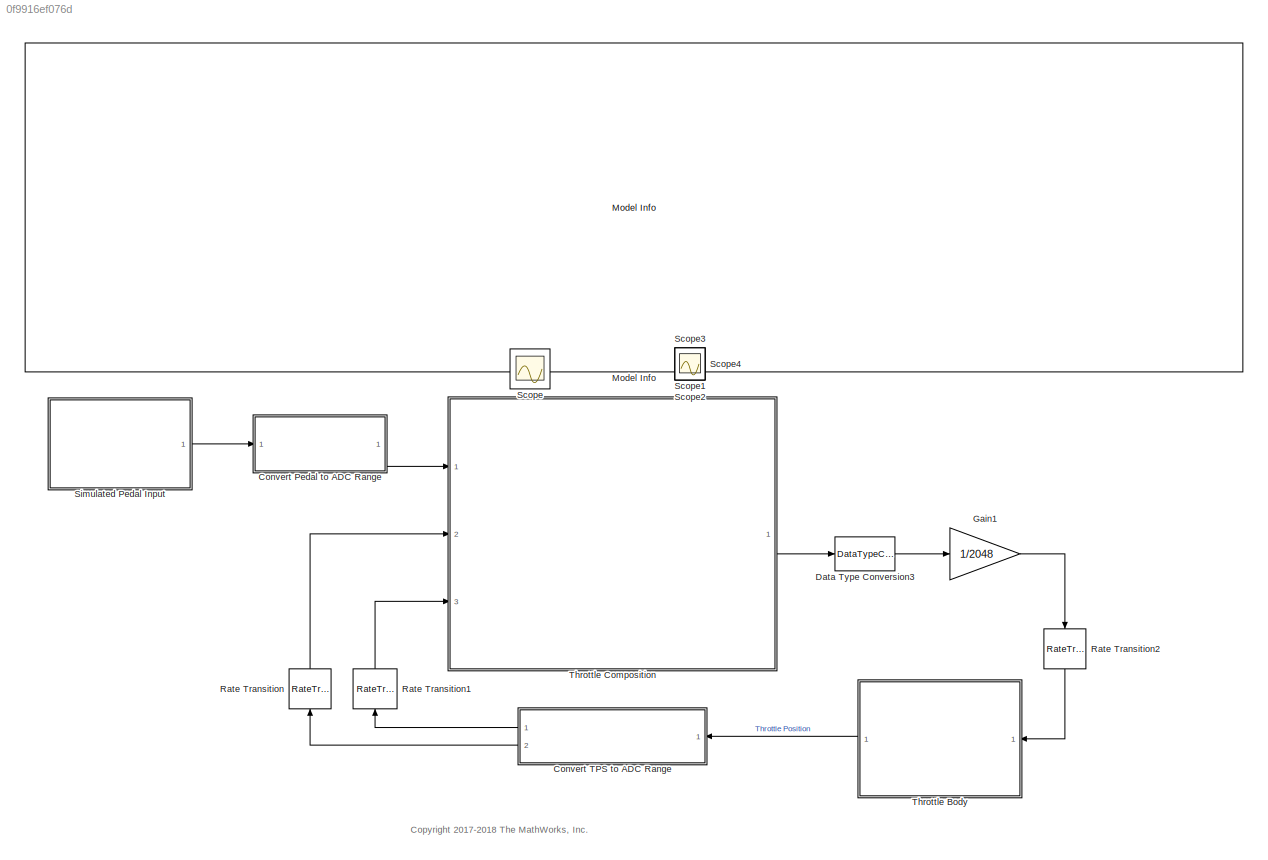
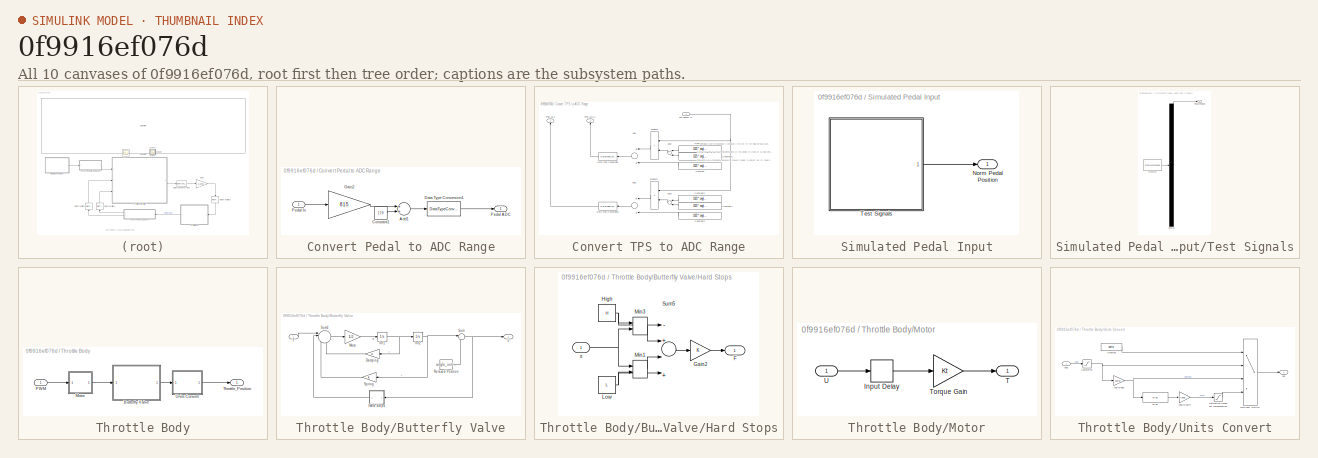
[diagram: thumbnail index - all 10 canvases of the model, root first then tree order]
MODEL slx_0f9916ef076d
KIND model
CONFIG AbsTol = auto
CONFIG EnableMultiTasking = on
CONFIG FixedStep = 0.005
CONFIG InitFcn = mbd_s32k_as_consistency_checks(bdroot(gcs));
CONFIG MaxStep = auto
CONFIG MinStep = auto
CONFIG RelTol = 1e-3
CONFIG SampleTimeConstraint = Unconstrained
CONFIG Solver = ode4
CONFIG SolverName = ode4
CONFIG StartTime = 0
CONFIG StopTime = 1.5
WORKSPACE source: MAT-file member
WORKSPACE MCOS: class17 (value not decoded)
BLOCK [SubSystem] Convert Pedal to ADC Range
  Ports = [1, 1]
  RequestExecContextInheritance = off
BLOCK [Sum] Convert Pedal to ADC Range/Add1
  InputSameDT = off
  OutDataTypeStr = Inherit: Inherit via internal rule
  Ports = [2, 1]
  SaturateOnIntegerOverflow = off
BLOCK [Constant] Convert Pedal to ADC Range/Constant1
  Value = 170
BLOCK [DataTypeConversion] Convert Pedal to ADC Range/Data Type Conversion1
  OutDataTypeStr = uint16
  RndMeth = Floor
  SaturateOnIntegerOverflow = off
BLOCK [Gain] Convert Pedal to ADC Range/Gain2
  Gain = 815
  OutDataTypeStr = Inherit: Inherit via internal rule
  ParamDataTypeStr = Inherit: Inherit via internal rule
  SaturateOnIntegerOverflow = off
BLOCK [Outport] Convert Pedal to ADC Range/Pedal ADC
  IconDisplay = Port number
BLOCK [Inport] Convert Pedal to ADC Range/Pedal In
  IconDisplay = Port number
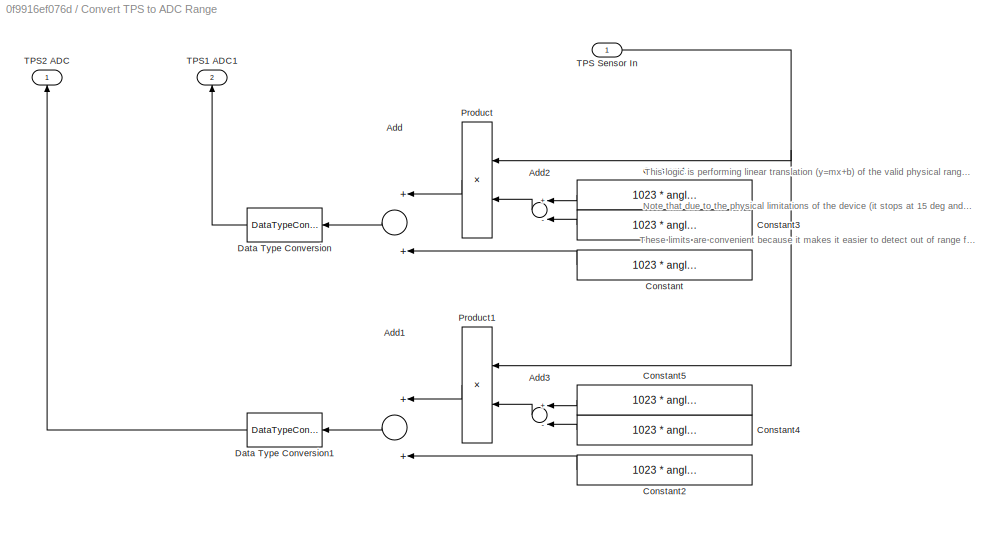
BLOCK [SubSystem] Convert TPS to ADC Range
  Ports = [1, 2]
  RequestExecContextInheritance = off
BLOCK [Sum] Convert TPS to ADC Range/Add
  InputSameDT = off
  OutDataTypeStr = Inherit: Inherit via internal rule
  Ports = [2, 1]
  SaturateOnIntegerOverflow = off
BLOCK [Sum] Convert TPS to ADC Range/Add1
  InputSameDT = off
  OutDataTypeStr = Inherit: Inherit via internal rule
  Ports = [2, 1]
  SaturateOnIntegerOverflow = off
BLOCK [Sum] Convert TPS to ADC Range/Add2
  InputSameDT = off
  Inputs = +-
  OutDataTypeStr = Inherit: Inherit via internal rule
  Ports = [2, 1]
  SaturateOnIntegerOverflow = off
BLOCK [Sum] Convert TPS to ADC Range/Add3
  InputSameDT = off
  Inputs = +-
  OutDataTypeStr = Inherit: Inherit via internal rule
  Ports = [2, 1]
  SaturateOnIntegerOverflow = off
BLOCK [Constant] Convert TPS to ADC Range/Constant
  Value = 1023 * angle_init/90
BLOCK [Constant] Convert TPS to ADC Range/Constant1
  Value = 1023 * angle_open/90
BLOCK [Constant] Convert TPS to ADC Range/Constant2
  Value = 1023 * angle_open/90
BLOCK [Constant] Convert TPS to ADC Range/Constant3
  Value = 1023 * angle_init/90
BLOCK [Constant] Convert TPS to ADC Range/Constant4
  Value = 1023 * angle_open/90
BLOCK [Constant] Convert TPS to ADC Range/Constant5
  Value = 1023 * angle_init/90
BLOCK [DataTypeConversion] Convert TPS to ADC Range/Data Type Conversion
  OutDataTypeStr = uint16
  RndMeth = Floor
  SaturateOnIntegerOverflow = off
BLOCK [DataTypeConversion] Convert TPS to ADC Range/Data Type Conversion1
  OutDataTypeStr = uint16
  RndMeth = Floor
  SaturateOnIntegerOverflow = off
BLOCK [Product] Convert TPS to ADC Range/Product
  InputSameDT = off
  OutDataTypeStr = Inherit: Inherit via internal rule
  Ports = [2, 1]
  RndMeth = Floor
  SaturateOnIntegerOverflow = off
BLOCK [Product] Convert TPS to ADC Range/Product1
  InputSameDT = off
  OutDataTypeStr = Inherit: Inherit via internal rule
  Ports = [2, 1]
  RndMeth = Floor
  SaturateOnIntegerOverflow = off
BLOCK [Inport] Convert TPS to ADC Range/TPS Sensor In
  IconDisplay = Port number
BLOCK [Outport] Convert TPS to ADC Range/TPS1 ADC1
  IconDisplay = Port number
  Port = 2
BLOCK [Outport] Convert TPS to ADC Range/TPS2 ADC
  IconDisplay = Port number
BLOCK [DataTypeConversion] Data Type Conversion3
  OutDataTypeStr = double
  RndMeth = Floor
  SaturateOnIntegerOverflow = off
BLOCK [Gain] Gain1
  Gain = 1/2048
  OutDataTypeStr = Inherit: Inherit via internal rule
  ParamDataTypeStr = Inherit: Inherit via internal rule
  SaturateOnIntegerOverflow = off
BLOCK [Reference] Model Info  REF=simulink/Model-Wide
Utilities/Model Info
  Ports = []
  SourceBlock = simulink/Model-Wide\nUtilities/Model Info
  SourceProductBaseCode = SL
  SourceProductName = Simulink
  SourceType = CMBlock
BLOCK [RateTransition] Rate Transition
  Deterministic = off
  OutPortSampleTime = .005
BLOCK [RateTransition] Rate Transition1
  Deterministic = off
  OutPortSampleTime = .005
BLOCK [RateTransition] Rate Transition2
  Deterministic = off
BLOCK [Scope] Scope
  Floating = off
  IOType = viewer
  NumInputPorts = 1
  Ports = []
  ScopeSpecificationString = Simulink.scopes.TimeScopeBlockCfg('CurrentConfiguration', extmgr.ConfigurationSet(extmgr.Configuration('Core','General UI',true),extmgr.Configuration('Core','Source UI',true),extmgr.Configuration('Sources','WiredSimulink',true,'DataLoggingSaveFormat','Array','DataLoggingMaxPoints','7500','DataLoggingLimitDataPoints',true,'DataLoggingDecimation','1','DataLoggingDecimateData',true),extmgr.Configurat...<+1781ch>
BLOCK [Scope] Scope1
  Floating = off
  IOType = viewer
  NumInputPorts = 1
  Ports = []
  ScopeSpecificationString = Simulink.scopes.TimeScopeBlockCfg('CurrentConfiguration', extmgr.ConfigurationSet(extmgr.Configuration('Core','General UI',true),extmgr.Configuration('Core','Source UI',true),extmgr.Configuration('Sources','WiredSimulink',true,'DataLoggingVariableName','ScopeData1'),extmgr.Configuration('Visuals','Time Domain',true,'SerializedDisplays',{struct('MinYLimReal','-1.00000','MaxYLimReal','1.00000','YLab...<+1359ch>
BLOCK [Scope] Scope2
  Floating = off
  IOType = viewer
  NumInputPorts = 1
  Ports = []
  ScopeSpecificationString = Simulink.scopes.TimeScopeBlockCfg('CurrentConfiguration', extmgr.ConfigurationSet(extmgr.Configuration('Core','General UI',true),extmgr.Configuration('Core','Source UI',true),extmgr.Configuration('Sources','WiredSimulink',true,'DataLoggingVariableName','ScopeData2'),extmgr.Configuration('Visuals','Time Domain',true,'SerializedDisplays',{struct('MinYLimReal','-1.25','MaxYLimReal','1.25','YLabelReal...<+1341ch>
BLOCK [Scope] Scope3
  Floating = off
  IOType = viewer
  NumInputPorts = 1
  Ports = []
  ScopeSpecificationString = Simulink.scopes.TimeScopeBlockCfg('CurrentConfiguration', extmgr.ConfigurationSet(extmgr.Configuration('Core','General UI',true),extmgr.Configuration('Core','Source UI',true),extmgr.Configuration('Sources','WiredSimulink',true,'DataLoggingVariableName','ScopeData1'),extmgr.Configuration('Visuals','Time Domain',true,'SerializedDisplays',{struct('MinYLimReal','-120.75','MaxYLimReal','1086.75','YLabe...<+1359ch>
BLOCK [Scope] Scope4
  Floating = off
  IOType = viewer
  NumInputPorts = 1
  Ports = []
  ScopeSpecificationString = Simulink.scopes.TimeScopeBlockCfg('CurrentConfiguration', extmgr.ConfigurationSet(extmgr.Configuration('Core','General UI',true),extmgr.Configuration('Core','Source UI',true),extmgr.Configuration('Sources','WiredSimulink',true,'DataLoggingVariableName','ScopeData2'),extmgr.Configuration('Visuals','Time Domain',true,'SerializedDisplays',{struct('MinYLimReal','70.5','MaxYLimReal','1065.5','YLabelRea...<+1341ch>
BLOCK [SubSystem] Simulated Pedal Input
  Ports = [0, 1]
  RequestExecContextInheritance = off
BLOCK [Outport] Simulated Pedal Input/Norm Pedal Position
  IconDisplay = Port number
BLOCK [SubSystem] Simulated Pedal Input/Test Signals
  ClipboardFcn = sigbuilder_block('clipboard');
  CloseFcn = sigbuilder_block('close');
  ContinueFcn = sigbuilder_block('continue')
  CopyFcn = sigbuilder_block('copy');
  DeleteFcn = sigbuilder_block('delete');
  LoadFcn = sigbuilder_block('load');
  MaskHideContents = on
  ModelCloseFcn = sigbuilder_block('modelClose');
  NameChangeFcn = sigbuilder_block('namechange');
  OpenFcn = sigbuilder_block('open',[-1004.25 112.5 630 289.5 ]);
  PauseFcn = sigbuilder_block('pause')
  Ports = [0, 1]
  PreSaveFcn = sigbuilder_block('preSave');
  RequestExecContextInheritance = off
  StartFcn = sigbuilder_block('start');
  StopFcn = sigbuilder_block('stop');
  Tag = STV Subsys
BLOCK [Demux] Simulated Pedal Input/Test Signals/Demux
  Outputs = 1
  Ports = [1, 1]
  Tag = STV Demux
BLOCK [FromWorkspace] Simulated Pedal Input/Test Signals/FromWs
  SampleTime = 0
  Tag = STV FromWs
  VariableName = tuvar
BLOCK [Outport] Simulated Pedal Input/Test Signals/Pedal Position
  IconDisplay = Port number
  Tag = STV Outport
BLOCK [SubSystem] Throttle Body
  Ports = [1, 1]
  RequestExecContextInheritance = off
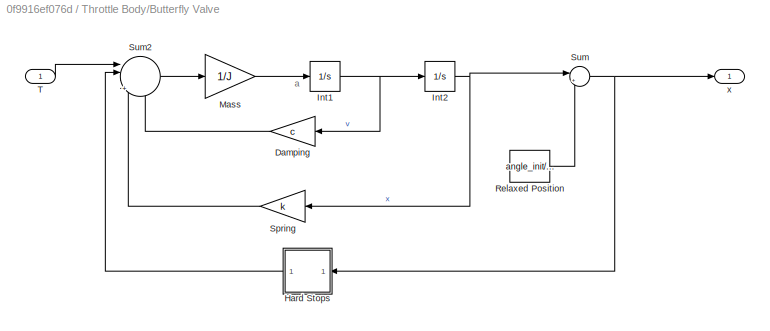
BLOCK [SubSystem] Throttle Body/Butterfly Valve
  Ports = [1, 1]
  RequestExecContextInheritance = off
BLOCK [Gain] Throttle Body/Butterfly Valve/Damping
  Gain = c
BLOCK [SubSystem] Throttle Body/Butterfly Valve/Hard Stops
  Ports = [1, 1]
  RequestExecContextInheritance = off
BLOCK [Outport] Throttle Body/Butterfly Valve/Hard Stops/F
  IconDisplay = Port number
BLOCK [Gain] Throttle Body/Butterfly Valve/Hard Stops/Gain2
  Gain = K
BLOCK [Constant] Throttle Body/Butterfly Valve/Hard Stops/High
  Value = H
BLOCK [Constant] Throttle Body/Butterfly Valve/Hard Stops/Low
  Value = L
BLOCK [MinMax] Throttle Body/Butterfly Valve/Hard Stops/Min1
  Inputs = 2
  Ports = [2, 1]
BLOCK [MinMax] Throttle Body/Butterfly Valve/Hard Stops/Min3
  Function = max
  Inputs = 2
  Ports = [2, 1]
BLOCK [Sum] Throttle Body/Butterfly Valve/Hard Stops/Sum5
  Inputs = -+||+-
  Ports = [4, 1]
BLOCK [Inport] Throttle Body/Butterfly Valve/Hard Stops/x
  IconDisplay = Port number
BLOCK [Integrator] Throttle Body/Butterfly Valve/Int1
  Ports = [1, 1]
BLOCK [Integrator] Throttle Body/Butterfly Valve/Int2
  Ports = [1, 1]
BLOCK [Gain] Throttle Body/Butterfly Valve/Mass
  Gain = 1/J
BLOCK [Constant] Throttle Body/Butterfly Valve/Relaxed Position
  Value = angle_init/180*pi
BLOCK [Gain] Throttle Body/Butterfly Valve/Spring
  Gain = k
BLOCK [Sum] Throttle Body/Butterfly Valve/Sum
  IconShape = round
  Inputs = |++
  Ports = [2, 1]
BLOCK [Sum] Throttle Body/Butterfly Valve/Sum2
  IconShape = round
  Inputs = |||+---
  Ports = [4, 1]
BLOCK [Inport] Throttle Body/Butterfly Valve/T
  IconDisplay = Port number
BLOCK [Outport] Throttle Body/Butterfly Valve/x
  IconDisplay = Port number
BLOCK [SubSystem] Throttle Body/Motor
  Ports = [1, 1]
  RequestExecContextInheritance = off
BLOCK [TransportDelay] Throttle Body/Motor/Input Delay
  DelayTime = input_delay
  Ports = [1, 1]
BLOCK [Outport] Throttle Body/Motor/T
  IconDisplay = Port number
BLOCK [Gain] Throttle Body/Motor/Torque Gain
  Gain = Kt
BLOCK [Inport] Throttle Body/Motor/U
  IconDisplay = Port number
BLOCK [Inport] Throttle Body/PWM
  IconDisplay = Port number
BLOCK [Outport] Throttle Body/Throttle_Position
  IconDisplay = Port number
BLOCK [SubSystem] Throttle Body/Units Convert
  Ports = [1, 1]
  RequestExecContextInheritance = off
BLOCK [Bias] Throttle Body/Units Convert/Bias
  Bias = -angle_init
  SaturateOnIntegerOverflow = off
BLOCK [Constant] Throttle Body/Units Convert/Constant
  Value = units
BLOCK [MultiPortSwitch] Throttle Body/Units Convert/Multiport Switch
  InputSameDT = off
  Ports = [4, 1]
  SaturateOnIntegerOverflow = off
BLOCK [Saturate] Throttle Body/Units Convert/Saturation
  InputPortMap = u0
  LowerLimit = 0.0
  Ports = [1, 1]
  UpperLimit = pi/2
BLOCK [Saturate] Throttle Body/Units Convert/Saturation (round off compensation)
  InputPortMap = u0
  LowerLimit = 0.0
  Ports = [1, 1]
  UpperLimit = 1.0
BLOCK [Gain] Throttle Body/Units Convert/deg-to-norm
  AttributesFormatString = %<Gain>
  Gain = 1/(angle_open-angle_init)
  OutDataTypeStr = Inherit: Inherit via internal rule
  ParamDataTypeStr = Inherit: Inherit via internal rule
  SaturateOnIntegerOverflow = off
BLOCK [Outport] Throttle Body/Units Convert/out
  IconDisplay = Port number
BLOCK [Gain] Throttle Body/Units Convert/rad-to-deg
  Gain = 180/pi
  OutDataTypeStr = Inherit: Inherit via internal rule
  ParamDataTypeStr = Inherit: Inherit via internal rule
  SaturateOnIntegerOverflow = off
BLOCK [Inport] Throttle Body/Units Convert/rads
  IconDisplay = Port number
BLOCK [ModelReference] Throttle Composition
  CachedPortDiscreteRates = [0.005]
  CodeInterface = Top model
  ModelNameDialog = mbdt_autosar_system.slx
  ModelReferenceVersion = 1.71
  Ports = [3, 1]
ANNOTATION (root): <copyright redacted>
ANNOTATION Convert TPS to ADC Range: This logic is performing linear translation (y=mx+b) of the valid physical range from the plant (0-1) to the expected range from the potentiometer (0-1023). Note that due to the physical limitations of the device (it stops at 15 deg and 85 deg), the limits cannot be reached. These limits are convenient because it makes it easier to detect out of range faults (like short to power/ground). TPS1 is a...<+137ch>
ANNOTATION Throttle Body/Butterfly Valve: a
LINE Convert Pedal to ADC Range/Add1:1 -> Convert Pedal to ADC Range/Data Type Conversion1:1
LINE Convert Pedal to ADC Range/Constant1:1 -> Convert Pedal to ADC Range/Add1:2
LINE Convert Pedal to ADC Range/Data Type Conversion1:1 -> Convert Pedal to ADC Range/Pedal ADC:1
LINE Convert Pedal to ADC Range/Gain2:1 -> Convert Pedal to ADC Range/Add1:1
LINE Convert Pedal to ADC Range/Pedal In:1 -> Convert Pedal to ADC Range/Gain2:1
LINE Convert Pedal to ADC Range:1 -> Throttle Composition:1
LINE Convert TPS to ADC Range/Add1:1 -> Convert TPS to ADC Range/Data Type Conversion1:1
LINE Convert TPS to ADC Range/Add2:1 -> Convert TPS to ADC Range/Product:2
LINE Convert TPS to ADC Range/Add3:1 -> Convert TPS to ADC Range/Product1:2
LINE Convert TPS to ADC Range/Add:1 -> Convert TPS to ADC Range/Data Type Conversion:1
LINE Convert TPS to ADC Range/Constant1:1 -> Convert TPS to ADC Range/Add2:1
LINE Convert TPS to ADC Range/Constant2:1 -> Convert TPS to ADC Range/Add1:2
LINE Convert TPS to ADC Range/Constant3:1 -> Convert TPS to ADC Range/Add2:2
LINE Convert TPS to ADC Range/Constant4:1 -> Convert TPS to ADC Range/Add3:2
LINE Convert TPS to ADC Range/Constant5:1 -> Convert TPS to ADC Range/Add3:1
LINE Convert TPS to ADC Range/Constant:1 -> Convert TPS to ADC Range/Add:2
LINE Convert TPS to ADC Range/Data Type Conversion1:1 -> Convert TPS to ADC Range/TPS2 ADC:1
LINE Convert TPS to ADC Range/Data Type Conversion:1 -> Convert TPS to ADC Range/TPS1 ADC1:1
LINE Convert TPS to ADC Range/Product1:1 -> Convert TPS to ADC Range/Add1:1
LINE Convert TPS to ADC Range/Product:1 -> Convert TPS to ADC Range/Add:1
NET Convert TPS to ADC Range/TPS Sensor In:1 -> Convert TPS to ADC Range/Product1:1, Convert TPS to ADC Range/Product:1
LINE Convert TPS to ADC Range:1 -> Rate Transition1:1
LINE Convert TPS to ADC Range:2 -> Rate Transition:1
LINE Data Type Conversion3:1 -> Gain1:1
LINE Gain1:1 -> Rate Transition2:1
LINE Rate Transition1:1 -> Throttle Composition:3
LINE Rate Transition2:1 -> Throttle Body:1
LINE Rate Transition:1 -> Throttle Composition:2
LINE Simulated Pedal Input/Test Signals/Demux:1 -> Simulated Pedal Input/Test Signals/Pedal Position:1
LINE Simulated Pedal Input/Test Signals/FromWs:1 -> Simulated Pedal Input/Test Signals/Demux:1
LINE Simulated Pedal Input/Test Signals:1 -> Simulated Pedal Input/Norm Pedal Position:1
LINE Simulated Pedal Input:1 -> Convert Pedal to ADC Range:1
LINE Throttle Body/Butterfly Valve/Damping:1 -> Throttle Body/Butterfly Valve/Sum2:4
LINE Throttle Body/Butterfly Valve/Hard Stops/Gain2:1 -> Throttle Body/Butterfly Valve/Hard Stops/F:1
NET Throttle Body/Butterfly Valve/Hard Stops/High:1 -> Throttle Body/Butterfly Valve/Hard Stops/Min3:1, Throttle Body/Butterfly Valve/Hard Stops/Sum5:1
NET Throttle Body/Butterfly Valve/Hard Stops/Low:1 -> Throttle Body/Butterfly Valve/Hard Stops/Min1:2, Throttle Body/Butterfly Valve/Hard Stops/Sum5:4
LINE Throttle Body/Butterfly Valve/Hard Stops/Min1:1 -> Throttle Body/Butterfly Valve/Hard Stops/Sum5:3
LINE Throttle Body/Butterfly Valve/Hard Stops/Min3:1 -> Throttle Body/Butterfly Valve/Hard Stops/Sum5:2
LINE Throttle Body/Butterfly Valve/Hard Stops/Sum5:1 -> Throttle Body/Butterfly Valve/Hard Stops/Gain2:1
NET Throttle Body/Butterfly Valve/Hard Stops/x:1 -> Throttle Body/Butterfly Valve/Hard Stops/Min1:1, Throttle Body/Butterfly Valve/Hard Stops/Min3:2
LINE Throttle Body/Butterfly Valve/Hard Stops:1 -> Throttle Body/Butterfly Valve/Sum2:2
NET Throttle Body/Butterfly Valve/Int1:1 -> Throttle Body/Butterfly Valve/Damping:1, Throttle Body/Butterfly Valve/Int2:1
NET Throttle Body/Butterfly Valve/Int2:1 -> Throttle Body/Butterfly Valve/Spring:1, Throttle Body/Butterfly Valve/Sum:1
LINE Throttle Body/Butterfly Valve/Mass:1 -> Throttle Body/Butterfly Valve/Int1:1
LINE Throttle Body/Butterfly Valve/Relaxed Position:1 -> Throttle Body/Butterfly Valve/Sum:2
LINE Throttle Body/Butterfly Valve/Spring:1 -> Throttle Body/Butterfly Valve/Sum2:3
LINE Throttle Body/Butterfly Valve/Sum2:1 -> Throttle Body/Butterfly Valve/Mass:1
NET Throttle Body/Butterfly Valve/Sum:1 -> Throttle Body/Butterfly Valve/Hard Stops:1, Throttle Body/Butterfly Valve/x:1
LINE Throttle Body/Butterfly Valve/T:1 -> Throttle Body/Butterfly Valve/Sum2:1
LINE Throttle Body/Butterfly Valve:1 -> Throttle Body/Units Convert:1
LINE Throttle Body/Motor/Input Delay:1 -> Throttle Body/Motor/Torque Gain:1
LINE Throttle Body/Motor/Torque Gain:1 -> Throttle Body/Motor/T:1
LINE Throttle Body/Motor/U:1 -> Throttle Body/Motor/Input Delay:1
LINE Throttle Body/Motor:1 -> Throttle Body/Butterfly Valve:1
LINE Throttle Body/PWM:1 -> Throttle Body/Motor:1
LINE Throttle Body/Units Convert/Bias:1 -> Throttle Body/Units Convert/deg-to-norm:1
LINE Throttle Body/Units Convert/Constant:1 -> Throttle Body/Units Convert/Multiport Switch:1
LINE Throttle Body/Units Convert/Multiport Switch:1 -> Throttle Body/Units Convert/out:1
LINE Throttle Body/Units Convert/Saturation (round off compensation):1 -> Throttle Body/Units Convert/Multiport Switch:4
NET Throttle Body/Units Convert/Saturation:1 -> Throttle Body/Units Convert/Multiport Switch:2, Throttle Body/Units Convert/rad-to-deg:1
LINE Throttle Body/Units Convert/deg-to-norm:1 -> Throttle Body/Units Convert/Saturation (round off compensation):1
NET Throttle Body/Units Convert/rad-to-deg:1 -> Throttle Body/Units Convert/Bias:1, Throttle Body/Units Convert/Multiport Switch:3
LINE Throttle Body/Units Convert/rads:1 -> Throttle Body/Units Convert/Saturation:1
LINE Throttle Body/Units Convert:1 -> Throttle Body/Throttle_Position:1
LINE Throttle Body:1 -> Convert TPS to ADC Range:1
LINE Throttle Composition:1 -> Data Type Conversion3:1
note: NET lines group one-source signal fan-out (src -> all destinations, sorted); 1:1 wires keep LINE
